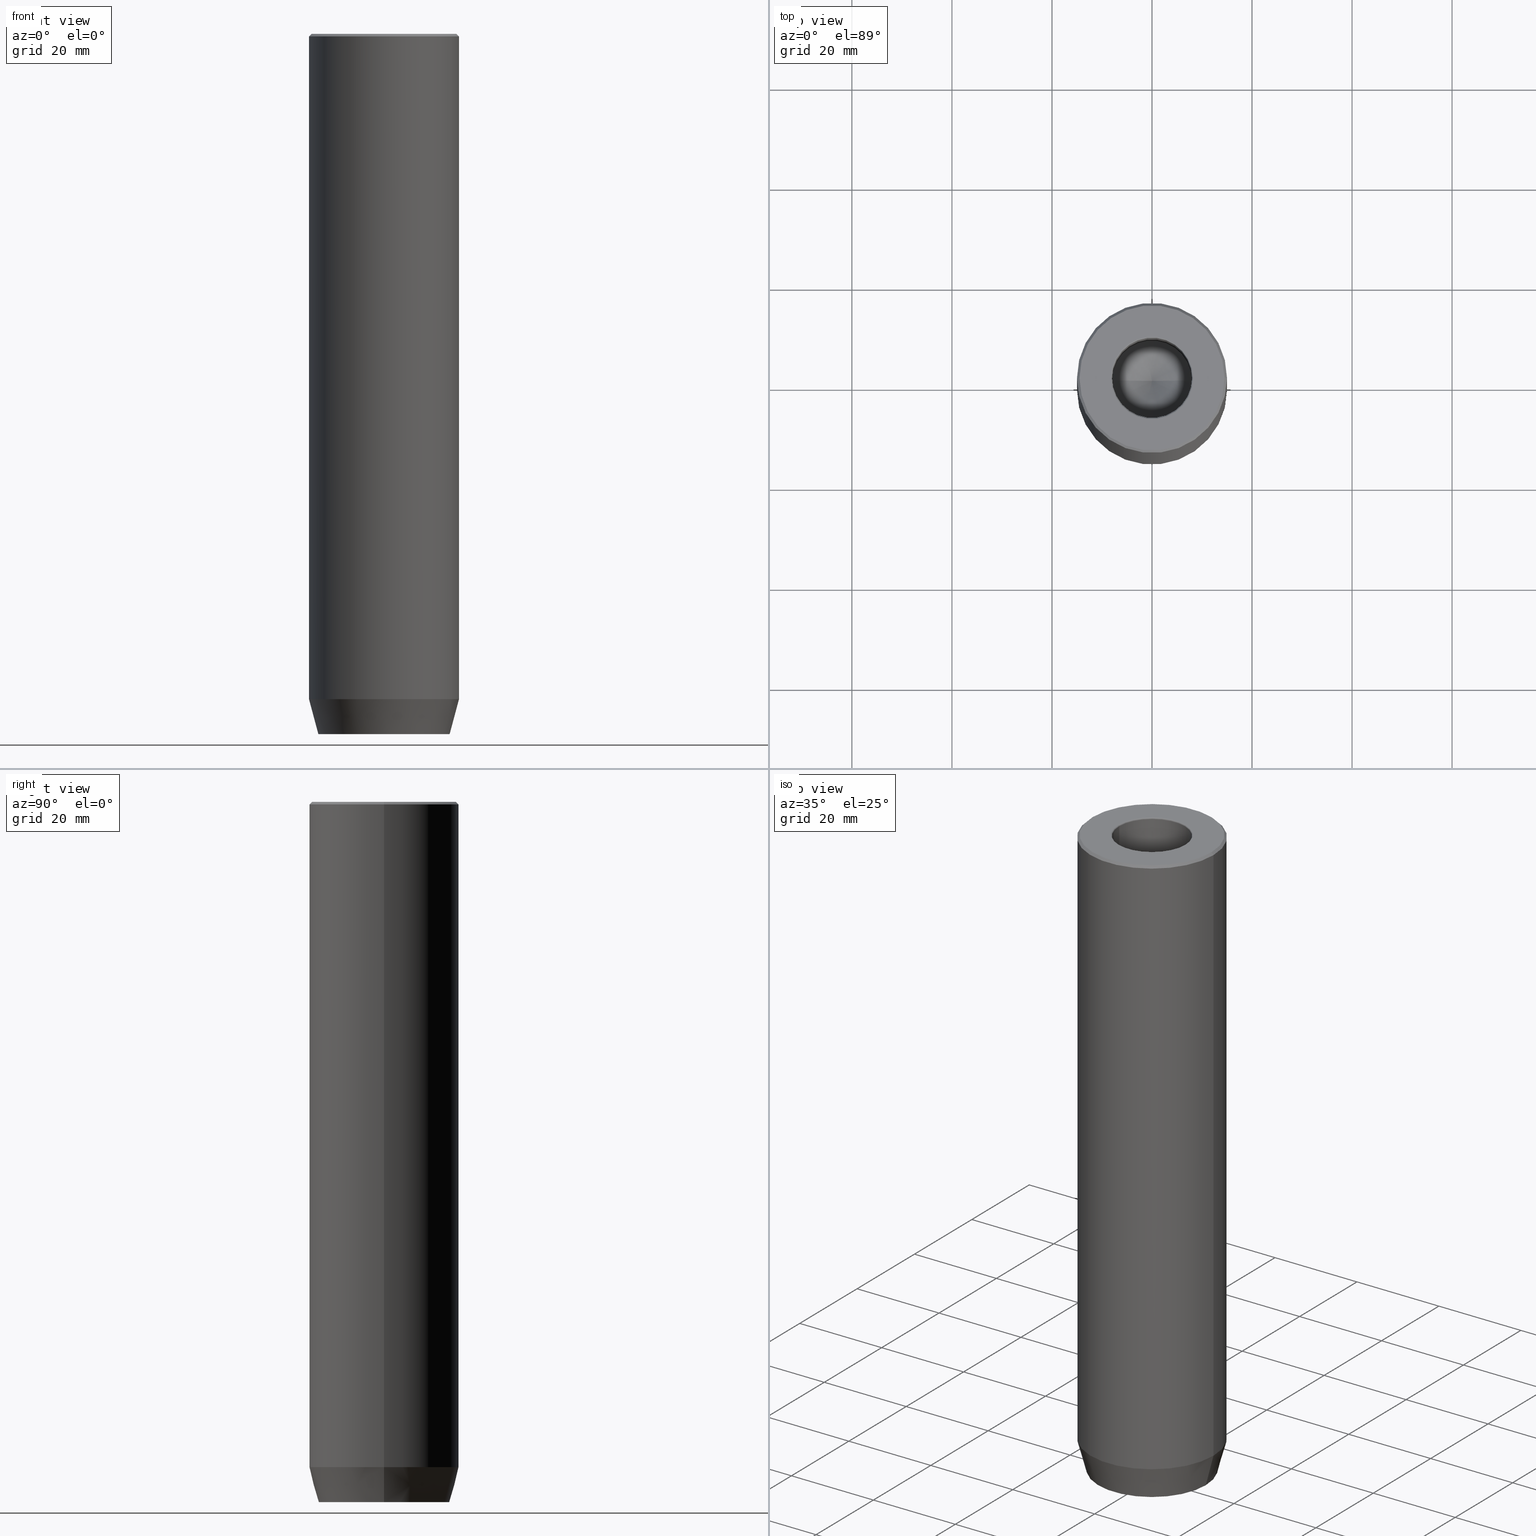
[diagram: canonical four-view strip — front | top / right | iso, engineering-drawing reading convention]
A machine part, canonical four-view strip (front | top / right | iso — engineering-drawing reading convention). The complete STEP part file that produces these views, byte-faithful:
ISO-10303-21;
HEADER;
FILE_DESCRIPTION (( 'STEP AP203' ),
    '1' );
FILE_NAME ('1ad8.STEP',
    '2024-01-02T17:25:17',
    ( '' ),
    ( '' ),
    'SwSTEP 2.0',
    'SolidWorks 2019',
    '' );
FILE_SCHEMA (( 'CONFIG_CONTROL_DESIGN' ));
ENDSEC;

DATA;
#1 = ORIENTED_EDGE ( 'NONE', *, *, #352, .T. ) ;
#2 = CARTESIAN_POINT ( 'NONE',  ( 4.000000000000000000, -2.309401076758503368, -134.2000000000000171 ) ) ;
#3 = VERTEX_POINT ( 'NONE', #603 ) ;
#4 = CARTESIAN_POINT ( 'NONE',  ( 4.000000000000000000, 2.309401076758504257, -134.2000000000000171 ) ) ;
#5 = EDGE_CURVE ( 'NONE', #40, #45, #266, .T. ) ;
#6 = EDGE_LOOP ( 'NONE', ( #193, #99, #291, #81 ) ) ;
#7 = AXIS2_PLACEMENT_3D ( 'NONE', #460, #509, #593 ) ;
#8 = DIRECTION ( 'NONE',  ( -0.8660254037844387076, 0.4999999999999997224, 0.000000000000000000 ) ) ;
#9 = FACE_OUTER_BOUND ( 'NONE', #446, .T. ) ;
#10 = CARTESIAN_POINT ( 'NONE',  ( -4.000000000000001776, -2.309401076758503368, -134.2000000000000171 ) ) ;
#11 = ORIENTED_EDGE ( 'NONE', *, *, #262, .F. ) ;
#12 = ADVANCED_FACE ( 'NONE', ( #50 ), #356, .T. ) ;
#13 = CARTESIAN_POINT ( 'NONE',  ( -1.999999999999999112, -3.464101615137755275, -140.0000000000000000 ) ) ;
#14 = LINE ( 'NONE', #150, #349 ) ;
#15 = AXIS2_PLACEMENT_3D ( 'NONE', #556, #250, #359 ) ;
#16 = AXIS2_PLACEMENT_3D ( 'NONE', #143, #579, #295 ) ;
#17 = CARTESIAN_POINT ( 'NONE',  ( 15.00000000000000000, 0.000000000000000000, -133.0000000000000000 ) ) ;
#18 = ADVANCED_BREP_SHAPE_REPRESENTATION ( '1ad8', ( #126, #463 ), #496 ) ;
#19 = CARTESIAN_POINT ( 'NONE',  ( -4.000000000000000888, 1.502314598737159623E-15, -134.2000000000000171 ) ) ;
#20 = PERSON_AND_ORGANIZATION ( #55, #277 ) ;
#21 = FACE_OUTER_BOUND ( 'NONE', #442, .T. ) ;
#22 = EDGE_LOOP ( 'NONE', ( #622, #439, #588 ) ) ;
#23 = DIRECTION ( 'NONE',  ( 1.000000000000000000, 0.000000000000000000, 0.000000000000000000 ) ) ;
#24 = ADVANCED_FACE ( 'NONE', ( #9 ), #60, .F. ) ;
#25 = PERSON_AND_ORGANIZATION_ROLE ( 'creator' ) ;
#26 = VECTOR ( 'NONE', #84, 1000.000000000000000 ) ;
#27 = CC_DESIGN_APPROVAL ( #43, ( #257 ) ) ;
#28 = DIRECTION ( 'NONE',  ( 0.8571673007021117785, 0.000000000000000000, 0.5150380749100550437 ) ) ;
#29 = AXIS2_PLACEMENT_3D ( 'NONE', #404, #251, #49 ) ;
#30 = EDGE_LOOP ( 'NONE', ( #379, #518, #611, #530 ) ) ;
#31 = LINE ( 'NONE', #329, #57 ) ;
#32 = ADVANCED_FACE ( 'NONE', ( #408 ), #454, .F. ) ;
#33 = PERSON_AND_ORGANIZATION ( #55, #277 ) ;
#34 = LINE ( 'NONE', #292, #341 ) ;
#35 = ORIENTED_EDGE ( 'NONE', *, *, #179, .F. ) ;
#36 = FACE_OUTER_BOUND ( 'NONE', #78, .T. ) ;
#37 = VECTOR ( 'NONE', #469, 1000.000000000000000 ) ;
#38 = ORIENTED_EDGE ( 'NONE', *, *, #370, .F. ) ;
#39 = CARTESIAN_POINT ( 'NONE',  ( 0.000000000000000000, 0.000000000000000000, -133.0000000000000000 ) ) ;
#40 = VERTEX_POINT ( 'NONE', #405 ) ;
#41 = CARTESIAN_POINT ( 'NONE',  ( 7.999999999999996447, 0.000000000000000000, -0.2999999999999999889 ) ) ;
#42 = ORIENTED_EDGE ( 'NONE', *, *, #494, .F. ) ;
#43 = APPROVAL ( #83, 'NEUR�EN�' ) ;
#44 = CARTESIAN_POINT ( 'NONE',  ( -14.50000000000001066, 0.000000000000000000, 0.000000000000000000 ) ) ;
#45 = VERTEX_POINT ( 'NONE', #113 ) ;
#46 = CONICAL_SURFACE ( 'NONE', #444, 15.00000000000000000, 0.2617993877991500740 ) ;
#47 = AXIS2_PLACEMENT_3D ( 'NONE', #355, #300, #602 ) ;
#48 = SECURITY_CLASSIFICATION_LEVEL ( 'unclassified' ) ;
#49 = DIRECTION ( 'NONE',  ( 0.8660254037844387076, -0.4999999999999997780, 0.000000000000000000 ) ) ;
#50 = FACE_OUTER_BOUND ( 'NONE', #419, .T. ) ;
#51 = EDGE_CURVE ( 'NONE', #174, #287, #259, .T. ) ;
#52 = CARTESIAN_POINT ( 'NONE',  ( 0.000000000000000000, 0.000000000000000000, -30.00000000000000000 ) ) ;
#53 = CARTESIAN_POINT ( 'NONE',  ( -15.00000000000000000, 1.836970198721029589E-15, -133.0000000000000000 ) ) ;
#54 = FACE_OUTER_BOUND ( 'NONE', #525, .T. ) ;
#55 = PERSON ( 'NEUR�EN�', 'NEUR�EN�', 'NEUR�EN�', ('NEUR�EN�'), ('NEUR�EN�'), ('NEUR�EN�') ) ;
#56 = CARTESIAN_POINT ( 'NONE',  ( -4.000000000000000000, 2.309401076758504257, -134.2000000000000171 ) ) ;
#57 = VECTOR ( 'NONE', #523, 1000.000000000000000 ) ;
#58 = AXIS2_PLACEMENT_3D ( 'NONE', #149, #206, #600 ) ;
#59 = LINE ( 'NONE', #258, #142 ) ;
#60 = PLANE ( 'NONE',  #131 ) ;
#61 = EDGE_CURVE ( 'NONE', #627, #40, #399, .T. ) ;
#62 = DIRECTION ( 'NONE',  ( -1.000000000000000000, 0.000000000000000000, -0.000000000000000000 ) ) ;
#63 = DIRECTION ( 'NONE',  ( -0.000000000000000000, -0.000000000000000000, -1.000000000000000000 ) ) ;
#64 = PRODUCT_RELATED_PRODUCT_CATEGORY ( 'detail', '', ( #248 ) ) ;
#65 = DIRECTION ( 'NONE',  ( 1.000000000000000000, 0.000000000000000000, 0.000000000000000000 ) ) ;
#66 = CARTESIAN_POINT ( 'NONE',  ( 0.000000000000000000, 0.000000000000000000, 0.000000000000000000 ) ) ;
#67 = CIRCLE ( 'NONE', #319, 15.00000000000000000 ) ;
#68 = VECTOR ( 'NONE', #199, 1000.000000000000000 ) ;
#69 = APPROVAL_ROLE ( '' ) ;
#70 = LINE ( 'NONE', #115, #89 ) ;
#71 = ORIENTED_EDGE ( 'NONE', *, *, #5, .T. ) ;
#72 = DATE_AND_TIME ( #471, #485 ) ;
#73 = EDGE_CURVE ( 'NONE', #627, #362, #503, .T. ) ;
#74 = DIRECTION ( 'NONE',  ( 0.8660254037844387076, -0.4999999999999999445, 0.000000000000000000 ) ) ;
#75 = ORIENTED_EDGE ( 'NONE', *, *, #358, .F. ) ;
#76 = CARTESIAN_POINT ( 'NONE',  ( 0.000000000000000000, 0.000000000000000000, -30.00000000000000000 ) ) ;
#77 = LINE ( 'NONE', #322, #443 ) ;
#78 = EDGE_LOOP ( 'NONE', ( #568, #606 ) ) ;
#79 = DIRECTION ( 'NONE',  ( -0.000000000000000000, -0.000000000000000000, 1.000000000000000000 ) ) ;
#80 = CARTESIAN_POINT ( 'NONE',  ( 0.000000000000000000, 0.000000000000000000, -133.0000000000000000 ) ) ;
#81 = ORIENTED_EDGE ( 'NONE', *, *, #599, .F. ) ;
#82 = EDGE_CURVE ( 'NONE', #3, #527, #109, .T. ) ;
#83 = APPROVAL_STATUS ( 'not_yet_approved' ) ;
#84 = DIRECTION ( 'NONE',  ( -0.000000000000000000, -0.000000000000000000, 1.000000000000000000 ) ) ;
#85 = ORIENTED_EDGE ( 'NONE', *, *, #51, .T. ) ;
#86 = CARTESIAN_POINT ( 'NONE',  ( -7.999999999999996447, 9.797174393178821713E-16, 0.000000000000000000 ) ) ;
#87 = EDGE_LOOP ( 'NONE', ( #351, #90, #224, #433 ) ) ;
#88 = DIRECTION ( 'NONE',  ( 1.000000000000000000, 0.000000000000000000, 0.000000000000000000 ) ) ;
#89 = VECTOR ( 'NONE', #562, 1000.000000000000227 ) ;
#90 = ORIENTED_EDGE ( 'NONE', *, *, #61, .T. ) ;
#91 = TOROIDAL_SURFACE ( 'NONE', #435, 8.299999999999997158, 0.2999999999999999889 ) ;
#92 = DIRECTION ( 'NONE',  ( 1.000000000000000000, 0.000000000000000000, 0.000000000000000000 ) ) ;
#93 = EDGE_CURVE ( 'NONE', #488, #415, #380, .T. ) ;
#94 = ORIENTED_EDGE ( 'NONE', *, *, #447, .T. ) ;
#95 = LINE ( 'NONE', #86, #26 ) ;
#96 = ORIENTED_EDGE ( 'NONE', *, *, #370, .T. ) ;
#97 = APPROVAL_ROLE ( '' ) ;
#98 = CARTESIAN_POINT ( 'NONE',  ( 0.000000000000000000, 0.000000000000000000, -0.2999999999999999889 ) ) ;
#99 = ORIENTED_EDGE ( 'NONE', *, *, #262, .T. ) ;
#100 = AXIS2_PLACEMENT_3D ( 'NONE', #631, #286, #388 ) ;
#101 = LOCAL_TIME ( 18, 25, 17.00000000000000000, #222 ) ;
#102 = EDGE_CURVE ( 'NONE', #396, #415, #220, .T. ) ;
#103 = DIRECTION ( 'NONE',  ( 0.000000000000000000, 0.000000000000000000, -1.000000000000000000 ) ) ;
#104 = VERTEX_POINT ( 'NONE', #56 ) ;
#105 = CARTESIAN_POINT ( 'NONE',  ( 0.000000000000000000, 0.000000000000000000, 0.000000000000000000 ) ) ;
#106 = DIRECTION ( 'NONE',  ( -0.000000000000000000, -0.000000000000000000, 1.000000000000000000 ) ) ;
#107 = DIRECTION ( 'NONE',  ( -0.000000000000000000, -0.000000000000000000, -1.000000000000000000 ) ) ;
#108 = EDGE_CURVE ( 'NONE', #521, #215, #14, .T. ) ;
#109 = LINE ( 'NONE', #200, #626 ) ;
#110 = AXIS2_PLACEMENT_3D ( 'NONE', #529, #290, #386 ) ;
#111 = FACE_OUTER_BOUND ( 'NONE', #232, .T. ) ;
#112 = EDGE_CURVE ( 'NONE', #45, #40, #67, .T. ) ;
#113 = CARTESIAN_POINT ( 'NONE',  ( -15.00000000000000000, 1.836970198721029589E-15, -0.4999999999999970024 ) ) ;
#114 = PERSON_AND_ORGANIZATION_ROLE ( 'design_owner' ) ;
#115 = CARTESIAN_POINT ( 'NONE',  ( 1.999999999999999556, -3.464101615137754386, -134.2000000000000171 ) ) ;
#116 = APPLICATION_PROTOCOL_DEFINITION ( 'international standard', 'config_control_design', 1994, #263 ) ;
#117 = DIRECTION ( 'NONE',  ( 1.000000000000000000, 0.000000000000000000, 0.000000000000000000 ) ) ;
#118 = ORIENTED_EDGE ( 'NONE', *, *, #179, .T. ) ;
#119 = EDGE_CURVE ( 'NONE', #577, #104, #428, .T. ) ;
#120 = APPROVAL_PERSON_ORGANIZATION ( #314, #638, #69 ) ;
#121 = DIRECTION ( 'NONE',  ( -0.000000000000000000, -0.000000000000000000, 1.000000000000000000 ) ) ;
#122 = CARTESIAN_POINT ( 'NONE',  ( 0.000000000000000000, 0.000000000000000000, -133.0000000000000000 ) ) ;
#123 = PERSON_AND_ORGANIZATION ( #55, #277 ) ;
#124 = CARTESIAN_POINT ( 'NONE',  ( -4.000000000000000888, 1.502314598737159623E-15, -134.2000000000000171 ) ) ;
#125 = VERTEX_POINT ( 'NONE', #425 ) ;
#126 = MANIFOLD_SOLID_BREP ( 'Odebrat vysunut�m1', #544 ) ;
#127 = PERSON_AND_ORGANIZATION ( #55, #277 ) ;
#128 = CARTESIAN_POINT ( 'NONE',  ( 7.999999999999994671, 0.000000000000000000, -30.00000000000000000 ) ) ;
#129 = EDGE_CURVE ( 'NONE', #246, #415, #621, .T. ) ;
#130 = ORIENTED_EDGE ( 'NONE', *, *, #340, .T. ) ;
#131 = AXIS2_PLACEMENT_3D ( 'NONE', #207, #547, #198 ) ;
#132 = CIRCLE ( 'NONE', #575, 7.999999999999994671 ) ;
#133 = LINE ( 'NONE', #573, #584 ) ;
#134 = PLANE ( 'NONE',  #16 ) ;
#135 = ORIENTED_EDGE ( 'NONE', *, *, #398, .T. ) ;
#136 = DIRECTION ( 'NONE',  ( 1.000000000000000000, 0.000000000000000000, 0.000000000000000000 ) ) ;
#137 = VERTEX_POINT ( 'NONE', #326 ) ;
#138 = ADVANCED_FACE ( 'NONE', ( #417 ), #339, .T. ) ;
#139 = FACE_OUTER_BOUND ( 'NONE', #22, .T. ) ;
#140 = CIRCLE ( 'NONE', #221, 15.00000000000000000 ) ;
#141 = EDGE_LOOP ( 'NONE', ( #507, #280, #218, #301 ) ) ;
#142 = VECTOR ( 'NONE', #456, 999.9999999999998863 ) ;
#143 = CARTESIAN_POINT ( 'NONE',  ( 2.000000000000000000, 3.464101615137755275, -134.2000000000000171 ) ) ;
#144 = ORIENTED_EDGE ( 'NONE', *, *, #557, .T. ) ;
#145 = DATE_AND_TIME ( #334, #545 ) ;
#146 = FACE_OUTER_BOUND ( 'NONE', #271, .T. ) ;
#147 = EDGE_CURVE ( 'NONE', #215, #3, #377, .T. ) ;
#148 = ORIENTED_EDGE ( 'NONE', *, *, #391, .F. ) ;
#149 = CARTESIAN_POINT ( 'NONE',  ( 0.000000000000000000, 0.000000000000000000, 0.000000000000000000 ) ) ;
#150 = CARTESIAN_POINT ( 'NONE',  ( 2.168404344971008868E-16, 4.618802153517005848, -134.2000000000000171 ) ) ;
#151 = AXIS2_PLACEMENT_3D ( 'NONE', #607, #619, #270 ) ;
#152 = CIRCLE ( 'NONE', #171, 0.2999999999999999334 ) ;
#153 = PLANE ( 'NONE',  #29 ) ;
#154 = VERTEX_POINT ( 'NONE', #567 ) ;
#155 = DIRECTION ( 'NONE',  ( -0.000000000000000000, -0.000000000000000000, 1.000000000000000000 ) ) ;
#156 = CARTESIAN_POINT ( 'NONE',  ( 0.000000000000000000, 0.000000000000000000, 0.000000000000000000 ) ) ;
#157 = CC_DESIGN_DATE_AND_TIME_ASSIGNMENT ( #247, #540, ( #257 ) ) ;
#158 = CARTESIAN_POINT ( 'NONE',  ( 0.000000000000000000, 0.000000000000000000, -0.2999999999999999889 ) ) ;
#159 = CARTESIAN_POINT ( 'NONE',  ( 0.000000000000000000, 0.000000000000000000, -0.2999999999999999889 ) ) ;
#160 = AXIS2_PLACEMENT_3D ( 'NONE', #177, #375, #571 ) ;
#161 = VECTOR ( 'NONE', #393, 1000.000000000000000 ) ;
#162 = DIRECTION ( 'NONE',  ( -0.000000000000000000, -0.000000000000000000, 1.000000000000000000 ) ) ;
#163 = DIRECTION ( 'NONE',  ( 1.000000000000000000, 0.000000000000000000, 0.000000000000000000 ) ) ;
#164 = LINE ( 'NONE', #364, #561 ) ;
#165 = EDGE_CURVE ( 'NONE', #421, #384, #70, .T. ) ;
#166 = ORIENTED_EDGE ( 'NONE', *, *, #219, .T. ) ;
#167 = CARTESIAN_POINT ( 'NONE',  ( 14.50000000000001066, 1.806354028742346591E-15, 0.000000000000000000 ) ) ;
#168 = CARTESIAN_POINT ( 'NONE',  ( 0.000000000000000000, 0.000000000000000000, 0.000000000000000000 ) ) ;
#169 = ORIENTED_EDGE ( 'NONE', *, *, #617, .T. ) ;
#170 = VECTOR ( 'NONE', #74, 999.9999999999998863 ) ;
#171 = AXIS2_PLACEMENT_3D ( 'NONE', #361, #272, #278 ) ;
#172 = MECHANICAL_CONTEXT ( 'NONE', #263, 'mechanical' ) ;
#173 = LINE ( 'NONE', #414, #410 ) ;
#174 = VERTEX_POINT ( 'NONE', #315 ) ;
#175 = ADVANCED_FACE ( 'NONE', ( #21 ), #511, .T. ) ;
#176 = DIRECTION ( 'NONE',  ( 1.000000000000000000, 0.000000000000000000, 0.000000000000000000 ) ) ;
#177 = CARTESIAN_POINT ( 'NONE',  ( 0.000000000000000000, 0.000000000000000000, -140.0000000000000000 ) ) ;
#178 = ORIENTED_EDGE ( 'NONE', *, *, #520, .T. ) ;
#179 = EDGE_CURVE ( 'NONE', #539, #3, #77, .T. ) ;
#180 = CARTESIAN_POINT ( 'NONE',  ( 7.999999999999996447, 0.000000000000000000, 0.000000000000000000 ) ) ;
#181 = ORIENTED_EDGE ( 'NONE', *, *, #284, .F. ) ;
#182 = PRODUCT_DEFINITION_FORMATION_WITH_SPECIFIED_SOURCE ( 'LIBOVOLN�', '', #248, .NOT_KNOWN. ) ;
#183 = CARTESIAN_POINT ( 'NONE',  ( 0.000000000000000000, 0.000000000000000000, 0.000000000000000000 ) ) ;
#184 = ORIENTED_EDGE ( 'NONE', *, *, #108, .T. ) ;
#185 = APPROVAL_ROLE ( '' ) ;
#186 = FACE_OUTER_BOUND ( 'NONE', #592, .T. ) ;
#187 = EDGE_LOOP ( 'NONE', ( #252, #492, #376, #343 ) ) ;
#188 = ADVANCED_FACE ( 'NONE', ( #223 ), #534, .T. ) ;
#189 = CARTESIAN_POINT ( 'NONE',  ( 0.000000000000000000, 0.000000000000000000, -30.00000000000000000 ) ) ;
#190 = ORIENTED_EDGE ( 'NONE', *, *, #82, .T. ) ;
#191 = CONICAL_SURFACE ( 'NONE', #583, 7.999999999999994671, 1.029744258676653423 ) ;
#192 = CARTESIAN_POINT ( 'NONE',  ( -4.000000000000000888, 1.502314598737159623E-15, -140.0000000000000000 ) ) ;
#193 = ORIENTED_EDGE ( 'NONE', *, *, #284, .T. ) ;
#194 = EDGE_CURVE ( 'NONE', #362, #627, #604, .T. ) ;
#195 = DIRECTION ( 'NONE',  ( -0.000000000000000000, -0.000000000000000000, -1.000000000000000000 ) ) ;
#196 = ORIENTED_EDGE ( 'NONE', *, *, #599, .T. ) ;
#197 = FACE_OUTER_BOUND ( 'NONE', #6, .T. ) ;
#198 = DIRECTION ( 'NONE',  ( -0.8660254037844385966, -0.4999999999999998890, 0.000000000000000000 ) ) ;
#199 = DIRECTION ( 'NONE',  ( -0.000000000000000000, -0.000000000000000000, -1.000000000000000000 ) ) ;
#200 = CARTESIAN_POINT ( 'NONE',  ( 4.000000000000000000, 0.000000000000000000, -140.0000000000000000 ) ) ;
#201 = VECTOR ( 'NONE', #28, 1000.000000000000000 ) ;
#202 = CIRCLE ( 'NONE', #563, 15.00000000000000000 ) ;
#203 = DIRECTION ( 'NONE',  ( -0.000000000000000000, -0.000000000000000000, 1.000000000000000000 ) ) ;
#204 = CARTESIAN_POINT ( 'NONE',  ( 0.000000000000000000, 0.000000000000000000, -0.4999999999999970024 ) ) ;
#205 = ADVANCED_FACE ( 'NONE', ( #217 ), #495, .T. ) ;
#206 = DIRECTION ( 'NONE',  ( 0.000000000000000000, 0.000000000000000000, -1.000000000000000000 ) ) ;
#207 = CARTESIAN_POINT ( 'NONE',  ( -2.000000000000000000, 3.464101615137755275, -134.2000000000000171 ) ) ;
#208 = DIRECTION ( 'NONE',  ( 0.000000000000000000, 0.000000000000000000, -1.000000000000000000 ) ) ;
#209 = AXIS2_PLACEMENT_3D ( 'NONE', #19, #466, #462 ) ;
#210 = AXIS2_PLACEMENT_3D ( 'NONE', #522, #79, #176 ) ;
#211 = ADVANCED_FACE ( 'NONE', ( #212 ), #265, .F. ) ;
#212 = FACE_OUTER_BOUND ( 'NONE', #394, .T. ) ;
#213 = EDGE_LOOP ( 'NONE', ( #178, #1 ) ) ;
#214 = DIRECTION ( 'NONE',  ( -0.7071067811865414665, 0.000000000000000000, -0.7071067811865536790 ) ) ;
#215 = VERTEX_POINT ( 'NONE', #420 ) ;
#216 = CARTESIAN_POINT ( 'NONE',  ( -4.000000000000001776, -2.309401076758503368, -134.2000000000000171 ) ) ;
#217 = FACE_OUTER_BOUND ( 'NONE', #87, .T. ) ;
#218 = ORIENTED_EDGE ( 'NONE', *, *, #391, .T. ) ;
#219 = EDGE_CURVE ( 'NONE', #384, #577, #173, .T. ) ;
#220 = CIRCLE ( 'NONE', #7, 0.2999999999999999889 ) ;
#221 = AXIS2_PLACEMENT_3D ( 'NONE', #80, #487, #235 ) ;
#222 = COORDINATED_UNIVERSAL_TIME_OFFSET ( 1, 0, .AHEAD. ) ;
#223 = FACE_OUTER_BOUND ( 'NONE', #187, .T. ) ;
#224 = ORIENTED_EDGE ( 'NONE', *, *, #112, .F. ) ;
#225 = APPROVAL ( #233, 'NEUR�EN�' ) ;
#226 = PERSON_AND_ORGANIZATION_ROLE ( 'creator' ) ;
#227 = DIRECTION ( 'NONE',  ( -0.000000000000000000, -0.000000000000000000, 1.000000000000000000 ) ) ;
#228 = ORIENTED_EDGE ( 'NONE', *, *, #506, .F. ) ;
#229 = COORDINATED_UNIVERSAL_TIME_OFFSET ( 1, 0, .AHEAD. ) ;
#230 = UNCERTAINTY_MEASURE_WITH_UNIT (LENGTH_MEASURE( 1.000000000000000082E-05 ), #374, 'distance_accuracy_value', 'NONE');
#231 = DIRECTION ( 'NONE',  ( 0.8660254037844387076, 0.4999999999999999445, 0.000000000000000000 ) ) ;
#232 = EDGE_LOOP ( 'NONE', ( #598, #318, #296, #536 ) ) ;
#233 = APPROVAL_STATUS ( 'not_yet_approved' ) ;
#234 = AXIS2_PLACEMENT_3D ( 'NONE', #517, #476, #117 ) ;
#235 = DIRECTION ( 'NONE',  ( 1.000000000000000000, 0.000000000000000000, 0.000000000000000000 ) ) ;
#236 = EDGE_CURVE ( 'NONE', #467, #246, #372, .T. ) ;
#237 = ORIENTED_EDGE ( 'NONE', *, *, #570, .F. ) ;
#238 = CARTESIAN_POINT ( 'NONE',  ( -15.00000000000000000, 1.836970198721029589E-15, -133.0000000000000000 ) ) ;
#239 = ORIENTED_EDGE ( 'NONE', *, *, #313, .F. ) ;
#240 = CARTESIAN_POINT ( 'NONE',  ( 8.299999999999997158, 0.000000000000000000, 0.000000000000000000 ) ) ;
#241 = ORIENTED_EDGE ( 'NONE', *, *, #333, .T. ) ;
#242 = EDGE_CURVE ( 'NONE', #174, #608, #422, .T. ) ;
#243 = VECTOR ( 'NONE', #532, 1000.000000000000227 ) ;
#244 = PLANE ( 'NONE',  #412 ) ;
#245 = VECTOR ( 'NONE', #107, 1000.000000000000000 ) ;
#246 = VERTEX_POINT ( 'NONE', #128 ) ;
#247 = DATE_AND_TIME ( #346, #615 ) ;
#248 = PRODUCT ( '1ad8', '1ad8', '', ( #172 ) ) ;
#249 = LINE ( 'NONE', #499, #68 ) ;
#250 = DIRECTION ( 'NONE',  ( 0.000000000000000000, 0.000000000000000000, -1.000000000000000000 ) ) ;
#251 = DIRECTION ( 'NONE',  ( -0.4999999999999998335, -0.8660254037844388186, 0.000000000000000000 ) ) ;
#252 = ORIENTED_EDGE ( 'NONE', *, *, #586, .F. ) ;
#253 = CARTESIAN_POINT ( 'NONE',  ( -8.299999999999997158, 1.016456843292302637E-15, 0.000000000000000000 ) ) ;
#254 = EDGE_CURVE ( 'NONE', #362, #45, #164, .T. ) ;
#255 = ORIENTED_EDGE ( 'NONE', *, *, #119, .T. ) ;
#256 = VECTOR ( 'NONE', #312, 1000.000000000000000 ) ;
#257 = SECURITY_CLASSIFICATION ( '', '', #48 ) ;
#258 = CARTESIAN_POINT ( 'NONE',  ( -2.000000000000000000, 3.464101615137755275, -140.0000000000000000 ) ) ;
#259 = LINE ( 'NONE', #53, #636 ) ;
#260 = FACE_BOUND ( 'NONE', #542, .T. ) ;
#261 = CARTESIAN_POINT ( 'NONE',  ( 0.000000000000000000, 0.000000000000000000, -0.4999999999999970024 ) ) ;
#262 = EDGE_CURVE ( 'NONE', #287, #45, #31, .T. ) ;
#263 = APPLICATION_CONTEXT ( 'configuration controlled 3d designs of mechanical parts and assemblies' ) ;
#264 = CARTESIAN_POINT ( 'NONE',  ( 15.00000000000000000, 0.000000000000000000, 0.000000000000000000 ) ) ;
#265 = PLANE ( 'NONE',  #209 ) ;
#266 = CIRCLE ( 'NONE', #595, 15.00000000000000000 ) ;
#267 = VECTOR ( 'NONE', #8, 1000.000000000000114 ) ;
#268 = DIRECTION ( 'NONE',  ( -1.000000000000000000, 0.000000000000000000, 0.000000000000000000 ) ) ;
#269 = ORIENTED_EDGE ( 'NONE', *, *, #398, .F. ) ;
#270 = DIRECTION ( 'NONE',  ( 1.000000000000000000, 0.000000000000000000, 0.000000000000000000 ) ) ;
#271 = EDGE_LOOP ( 'NONE', ( #345, #473, #429 ) ) ;
#272 = DIRECTION ( 'NONE',  ( 1.224646799147353207E-16, 1.000000000000000000, 0.000000000000000000 ) ) ;
#273 = DIRECTION ( 'NONE',  ( -0.8660254037844387076, 0.4999999999999997224, 0.000000000000000000 ) ) ;
#274 = CC_DESIGN_PERSON_AND_ORGANIZATION_ASSIGNMENT ( #385, #589, ( #257 ) ) ;
#275 = ORIENTED_EDGE ( 'NONE', *, *, #617, .F. ) ;
#276 = VECTOR ( 'NONE', #231, 999.9999999999998863 ) ;
#277 = ORGANIZATION ( 'NEUR�EN�', 'NEUR�EN�', '' ) ;
#278 = DIRECTION ( 'NONE',  ( -1.000000000000000000, 1.224646799147353207E-16, 0.000000000000000000 ) ) ;
#279 = CARTESIAN_POINT ( 'NONE',  ( 7.999999999999994671, 0.000000000000000000, -30.00000000000000000 ) ) ;
#280 = ORIENTED_EDGE ( 'NONE', *, *, #242, .T. ) ;
#281 = APPROVAL_DATE_TIME ( #145, #225 ) ;
#282 = FACE_OUTER_BOUND ( 'NONE', #336, .T. ) ;
#283 = ORIENTED_EDGE ( 'NONE', *, *, #333, .F. ) ;
#284 = EDGE_CURVE ( 'NONE', #580, #287, #140, .T. ) ;
#285 = PERSON_AND_ORGANIZATION ( #55, #277 ) ;
#286 = DIRECTION ( 'NONE',  ( -0.000000000000000000, -0.000000000000000000, 1.000000000000000000 ) ) ;
#287 = VERTEX_POINT ( 'NONE', #238 ) ;
#288 = AXIS2_PLACEMENT_3D ( 'NONE', #156, #106, #552 ) ;
#289 = CC_DESIGN_APPROVAL ( #638, ( #591 ) ) ;
#290 = DIRECTION ( 'NONE',  ( 0.000000000000000000, 0.000000000000000000, -1.000000000000000000 ) ) ;
#291 = ORIENTED_EDGE ( 'NONE', *, *, #112, .T. ) ;
#292 = CARTESIAN_POINT ( 'NONE',  ( 2.000000000000000000, 3.464101615137755275, -134.2000000000000171 ) ) ;
#293 = ADVANCED_FACE ( 'NONE', ( #139 ), #191, .F. ) ;
#294 = EDGE_LOOP ( 'NONE', ( #239, #130, #490, #483 ) ) ;
#295 = DIRECTION ( 'NONE',  ( -0.8660254037844385966, 0.4999999999999998890, 0.000000000000000000 ) ) ;
#296 = ORIENTED_EDGE ( 'NONE', *, *, #447, .F. ) ;
#297 = PERSON_AND_ORGANIZATION ( #55, #277 ) ;
#298 = APPLICATION_CONTEXT ( 'configuration controlled 3d designs of mechanical parts and assemblies' ) ;
#299 = CIRCLE ( 'NONE', #100, 7.999999999999994671 ) ;
#300 = DIRECTION ( 'NONE',  ( -0.000000000000000000, -0.000000000000000000, 1.000000000000000000 ) ) ;
#301 = ORIENTED_EDGE ( 'NONE', *, *, #578, .F. ) ;
#302 = DIRECTION ( 'NONE',  ( 1.000000000000000000, 0.000000000000000000, 0.000000000000000000 ) ) ;
#303 = CARTESIAN_POINT ( 'NONE',  ( 4.000000000000000000, 0.000000000000000000, -134.2000000000000171 ) ) ;
#304 = EDGE_CURVE ( 'NONE', #539, #421, #133, .T. ) ;
#305 = DIRECTION ( 'NONE',  ( 1.000000000000000000, 0.000000000000000000, 0.000000000000000000 ) ) ;
#306 = DIRECTION ( 'NONE',  ( -0.000000000000000000, -0.000000000000000000, 1.000000000000000000 ) ) ;
#307 = DIRECTION ( 'NONE',  ( 0.000000000000000000, 0.000000000000000000, -1.000000000000000000 ) ) ;
#308 = VECTOR ( 'NONE', #342, 1000.000000000000000 ) ;
#309 = DIRECTION ( 'NONE',  ( 0.000000000000000000, -1.000000000000000000, 0.000000000000000000 ) ) ;
#310 = LOCAL_TIME ( 18, 25, 17.00000000000000000, #229 ) ;
#311 = FACE_OUTER_BOUND ( 'NONE', #389, .T. ) ;
#312 = DIRECTION ( 'NONE',  ( 0.7071067811865414665, 8.659560562354857670E-17, -0.7071067811865536790 ) ) ;
#313 = EDGE_CURVE ( 'NONE', #125, #246, #299, .T. ) ;
#314 = PERSON_AND_ORGANIZATION ( #55, #277 ) ;
#315 = CARTESIAN_POINT ( 'NONE',  ( -13.12435565298213369, 1.722120106425316888E-15, -140.0000000000000000 ) ) ;
#316 = APPROVAL_STATUS ( 'not_yet_approved' ) ;
#317 = DIRECTION ( 'NONE',  ( -0.000000000000000000, -0.000000000000000000, -1.000000000000000000 ) ) ;
#318 = ORIENTED_EDGE ( 'NONE', *, *, #586, .T. ) ;
#319 = AXIS2_PLACEMENT_3D ( 'NONE', #261, #208, #23 ) ;
#320 = VECTOR ( 'NONE', #409, 1000.000000000000000 ) ;
#321 = PRODUCT_DEFINITION_SHAPE ( 'NONE', 'NONE',  #591 ) ;
#322 = CARTESIAN_POINT ( 'NONE',  ( 4.000000000000000000, 2.309401076758504257, -134.2000000000000171 ) ) ;
#323 = ORIENTED_EDGE ( 'NONE', *, *, #147, .F. ) ;
#324 = LINE ( 'NONE', #216, #320 ) ;
#325 = EDGE_CURVE ( 'NONE', #467, #125, #383, .T. ) ;
#326 = CARTESIAN_POINT ( 'NONE',  ( -4.000000000000001776, -2.309401076758503368, -140.0000000000000000 ) ) ;
#327 = ORIENTED_EDGE ( 'NONE', *, *, #108, .F. ) ;
#328 = LINE ( 'NONE', #264, #505 ) ;
#329 = CARTESIAN_POINT ( 'NONE',  ( -15.00000000000000000, 1.836970198721029589E-15, 0.000000000000000000 ) ) ;
#330 = VECTOR ( 'NONE', #344, 1000.000000000000000 ) ;
#331 = AXIS2_PLACEMENT_3D ( 'NONE', #52, #203, #302 ) ;
#332 = LINE ( 'NONE', #438, #330 ) ;
#333 = EDGE_CURVE ( 'NONE', #104, #521, #526, .T. ) ;
#334 = CALENDAR_DATE ( 2024, 2, 1 ) ;
#335 = DIRECTION ( 'NONE',  ( -0.000000000000000000, -0.000000000000000000, 1.000000000000000000 ) ) ;
#336 = EDGE_LOOP ( 'NONE', ( #533, #85, #181, #148 ) ) ;
#337 = FACE_OUTER_BOUND ( 'NONE', #481, .T. ) ;
#338 = EDGE_LOOP ( 'NONE', ( #564, #275, #582, #144 ) ) ;
#339 = CONICAL_SURFACE ( 'NONE', #434, 15.00000000000000000, 0.2617993877991500740 ) ;
#340 = EDGE_CURVE ( 'NONE', #125, #488, #95, .T. ) ;
#341 = VECTOR ( 'NONE', #587, 999.9999999999998863 ) ;
#342 = DIRECTION ( 'NONE',  ( -0.8571673007021117785, 1.049727191138617956E-16, 0.5150380749100550437 ) ) ;
#343 = ORIENTED_EDGE ( 'NONE', *, *, #93, .F. ) ;
#344 = DIRECTION ( 'NONE',  ( 0.2588190451025213501, 0.000000000000000000, 0.9659258262890680902 ) ) ;
#345 = ORIENTED_EDGE ( 'NONE', *, *, #236, .F. ) ;
#346 = CALENDAR_DATE ( 2024, 2, 1 ) ;
#347 = CARTESIAN_POINT ( 'NONE',  ( -8.296478875781655917E-15, 0.000000000000000000, -34.80688495222048573 ) ) ;
#348 = ORIENTED_EDGE ( 'NONE', *, *, #570, .T. ) ;
#349 = VECTOR ( 'NONE', #63, 1000.000000000000000 ) ;
#350 = CYLINDRICAL_SURFACE ( 'NONE', #47, 7.999999999999996447 ) ;
#351 = ORIENTED_EDGE ( 'NONE', *, *, #73, .F. ) ;
#352 = EDGE_CURVE ( 'NONE', #457, #396, #390, .T. ) ;
#353 = CARTESIAN_POINT ( 'NONE',  ( 0.000000000000000000, 0.000000000000000000, 0.000000000000000000 ) ) ;
#354 = DIRECTION ( 'NONE',  ( 1.000000000000000000, 0.000000000000000000, -0.000000000000000000 ) ) ;
#355 = CARTESIAN_POINT ( 'NONE',  ( 0.000000000000000000, 0.000000000000000000, 0.000000000000000000 ) ) ;
#356 = PLANE ( 'NONE',  #15 ) ;
#357 = FACE_OUTER_BOUND ( 'NONE', #338, .T. ) ;
#358 = EDGE_CURVE ( 'NONE', #527, #477, #535, .T. ) ;
#359 = DIRECTION ( 'NONE',  ( -1.000000000000000000, 0.000000000000000000, -0.000000000000000000 ) ) ;
#360 = AXIS2_PLACEMENT_3D ( 'NONE', #546, #103, #62 ) ;
#361 = CARTESIAN_POINT ( 'NONE',  ( -8.299999999999997158, 1.016456843292302637E-15, -0.2999999999999999889 ) ) ;
#362 = VERTEX_POINT ( 'NONE', #44 ) ;
#363 = FACE_OUTER_BOUND ( 'NONE', #294, .T. ) ;
#364 = CARTESIAN_POINT ( 'NONE',  ( -14.50000000000001066, 0.000000000000000000, 0.000000000000000000 ) ) ;
#365 = ORIENTED_EDGE ( 'NONE', *, *, #165, .T. ) ;
#366 =( NAMED_UNIT ( * ) PLANE_ANGLE_UNIT ( ) SI_UNIT ( $, .RADIAN. ) );
#367 = DIRECTION ( 'NONE',  ( 1.000000000000000000, 0.000000000000000000, 0.000000000000000000 ) ) ;
#368 = ORIENTED_EDGE ( 'NONE', *, *, #358, .T. ) ;
#369 = APPROVAL_PERSON_ORGANIZATION ( #127, #225, #185 ) ;
#370 = EDGE_CURVE ( 'NONE', #104, #154, #436, .T. ) ;
#371 = CARTESIAN_POINT ( 'NONE',  ( 0.000000000000000000, 0.000000000000000000, 0.000000000000000000 ) ) ;
#372 = LINE ( 'NONE', #279, #201 ) ;
#373 = EDGE_LOOP ( 'NONE', ( #190, #635, #555, #118 ) ) ;
#374 =( LENGTH_UNIT ( ) NAMED_UNIT ( * ) SI_UNIT ( .MILLI., .METRE. ) );
#375 = DIRECTION ( 'NONE',  ( -0.000000000000000000, -0.000000000000000000, 1.000000000000000000 ) ) ;
#376 = ORIENTED_EDGE ( 'NONE', *, *, #102, .T. ) ;
#377 = LINE ( 'NONE', #558, #170 ) ;
#378 = ADVANCED_FACE ( 'NONE', ( #282 ), #46, .T. ) ;
#379 = ORIENTED_EDGE ( 'NONE', *, *, #61, .F. ) ;
#380 = CIRCLE ( 'NONE', #574, 7.999999999999996447 ) ;
#381 = CONICAL_SURFACE ( 'NONE', #596, 14.50000000000001066, 0.7853981633974396193 ) ;
#382 = SHAPE_DEFINITION_REPRESENTATION ( #321, #18 ) ;
#383 = LINE ( 'NONE', #624, #308 ) ;
#384 = VERTEX_POINT ( 'NONE', #480 ) ;
#385 = PERSON_AND_ORGANIZATION ( #55, #277 ) ;
#386 = DIRECTION ( 'NONE',  ( 1.000000000000000000, 0.000000000000000000, 0.000000000000000000 ) ) ;
#387 = ORIENTED_EDGE ( 'NONE', *, *, #578, .T. ) ;
#388 = DIRECTION ( 'NONE',  ( 1.000000000000000000, 0.000000000000000000, 0.000000000000000000 ) ) ;
#389 = EDGE_LOOP ( 'NONE', ( #616, #498, #559, #94 ) ) ;
#390 = CIRCLE ( 'NONE', #110, 8.299999999999997158 ) ;
#391 = EDGE_CURVE ( 'NONE', #608, #580, #332, .T. ) ;
#392 = CC_DESIGN_SECURITY_CLASSIFICATION ( #257, ( #182 ) ) ;
#393 = DIRECTION ( 'NONE',  ( 3.755786496842898071E-16, 1.000000000000000000, 0.000000000000000000 ) ) ;
#394 = EDGE_LOOP ( 'NONE', ( #632, #38, #630, #169 ) ) ;
#395 = PLANE ( 'NONE',  #360 ) ;
#396 = VERTEX_POINT ( 'NONE', #240 ) ;
#397 = DIRECTION ( 'NONE',  ( -0.000000000000000000, -0.000000000000000000, 1.000000000000000000 ) ) ;
#398 = EDGE_CURVE ( 'NONE', #521, #539, #34, .T. ) ;
#399 = LINE ( 'NONE', #601, #256 ) ;
#400 = AXIS2_PLACEMENT_3D ( 'NONE', #168, #227, #367 ) ;
#401 = LINE ( 'NONE', #2, #245 ) ;
#402 = AXIS2_PLACEMENT_3D ( 'NONE', #590, #397, #452 ) ;
#403 = ORIENTED_EDGE ( 'NONE', *, *, #82, .F. ) ;
#404 = CARTESIAN_POINT ( 'NONE',  ( -1.999999999999999112, -3.464101615137755275, -134.2000000000000171 ) ) ;
#405 = CARTESIAN_POINT ( 'NONE',  ( 15.00000000000000000, 0.000000000000000000, -0.4999999999999970024 ) ) ;
#406 = ADVANCED_FACE ( 'NONE', ( #432, #36 ), #629, .T. ) ;
#407 = CYLINDRICAL_SURFACE ( 'NONE', #474, 15.00000000000000000 ) ;
#408 = FACE_OUTER_BOUND ( 'NONE', #373, .T. ) ;
#409 = DIRECTION ( 'NONE',  ( -0.000000000000000000, -0.000000000000000000, -1.000000000000000000 ) ) ;
#410 = VECTOR ( 'NONE', #273, 1000.000000000000114 ) ;
#411 = ORIENTED_EDGE ( 'NONE', *, *, #475, .T. ) ;
#412 = AXIS2_PLACEMENT_3D ( 'NONE', #537, #491, #497 ) ;
#413 = CARTESIAN_POINT ( 'NONE',  ( 0.000000000000000000, 0.000000000000000000, -133.0000000000000000 ) ) ;
#414 = CARTESIAN_POINT ( 'NONE',  ( -1.999999999999999112, -3.464101615137755275, -134.2000000000000171 ) ) ;
#415 = VERTEX_POINT ( 'NONE', #41 ) ;
#416 = COORDINATED_UNIVERSAL_TIME_OFFSET ( 1, 0, .AHEAD. ) ;
#417 = FACE_OUTER_BOUND ( 'NONE', #141, .T. ) ;
#418 = EDGE_CURVE ( 'NONE', #137, #154, #634, .T. ) ;
#419 = EDGE_LOOP ( 'NONE', ( #241, #135, #426, #365, #166, #255 ) ) ;
#420 = CARTESIAN_POINT ( 'NONE',  ( 4.336808689942017736E-16, 4.618802153517006737, -140.0000000000000000 ) ) ;
#421 = VERTEX_POINT ( 'NONE', #576 ) ;
#422 = CIRCLE ( 'NONE', #160, 13.12435565298213369 ) ;
#423 = AXIS2_PLACEMENT_3D ( 'NONE', #183, #489, #136 ) ;
#424 = CALENDAR_DATE ( 2024, 2, 1 ) ;
#425 = CARTESIAN_POINT ( 'NONE',  ( -7.999999999999994671, 9.797174393178819741E-16, -30.00000000000000000 ) ) ;
#426 = ORIENTED_EDGE ( 'NONE', *, *, #304, .T. ) ;
#427 = ADVANCED_FACE ( 'NONE', ( #186 ), #134, .F. ) ;
#428 = LINE ( 'NONE', #124, #37 ) ;
#429 = ORIENTED_EDGE ( 'NONE', *, *, #313, .T. ) ;
#430 = COORDINATED_UNIVERSAL_TIME_OFFSET ( 1, 0, .AHEAD. ) ;
#431 = CC_DESIGN_PERSON_AND_ORGANIZATION_ASSIGNMENT ( #20, #114, ( #248 ) ) ;
#432 = FACE_BOUND ( 'NONE', #213, .T. ) ;
#433 = ORIENTED_EDGE ( 'NONE', *, *, #254, .F. ) ;
#434 = AXIS2_PLACEMENT_3D ( 'NONE', #122, #519, #610 ) ;
#435 = AXIS2_PLACEMENT_3D ( 'NONE', #98, #155, #450 ) ;
#436 = LINE ( 'NONE', #482, #472 ) ;
#437 = ORIENTED_EDGE ( 'NONE', *, *, #557, .F. ) ;
#438 = CARTESIAN_POINT ( 'NONE',  ( 15.00000000000000000, 0.000000000000000000, -133.0000000000000000 ) ) ;
#439 = ORIENTED_EDGE ( 'NONE', *, *, #236, .T. ) ;
#440 = ADVANCED_FACE ( 'NONE', ( #337 ), #244, .F. ) ;
#441 = CARTESIAN_POINT ( 'NONE',  ( -2.000000000000000000, 3.464101615137755275, -134.2000000000000171 ) ) ;
#442 = EDGE_LOOP ( 'NONE', ( #11, #387, #196, #71 ) ) ;
#443 = VECTOR ( 'NONE', #317, 1000.000000000000000 ) ;
#444 = AXIS2_PLACEMENT_3D ( 'NONE', #39, #581, #92 ) ;
#445 = CARTESIAN_POINT ( 'NONE',  ( 1.999999999999999556, -3.464101615137754386, -140.0000000000000000 ) ) ;
#446 = EDGE_LOOP ( 'NONE', ( #348, #327, #283, #96 ) ) ;
#447 = EDGE_CURVE ( 'NONE', #415, #488, #637, .T. ) ;
#448 = DIRECTION ( 'NONE',  ( 1.000000000000000000, 0.000000000000000000, 0.000000000000000000 ) ) ;
#449 = ORIENTED_EDGE ( 'NONE', *, *, #418, .F. ) ;
#450 = DIRECTION ( 'NONE',  ( 1.000000000000000000, 0.000000000000000000, 0.000000000000000000 ) ) ;
#451 = DIRECTION ( 'NONE',  ( 0.000000000000000000, 0.000000000000000000, -1.000000000000000000 ) ) ;
#452 = DIRECTION ( 'NONE',  ( 1.000000000000000000, 0.000000000000000000, 0.000000000000000000 ) ) ;
#453 = CC_DESIGN_APPROVAL ( #225, ( #182 ) ) ;
#454 = PLANE ( 'NONE',  #513 ) ;
#455 = ADVANCED_FACE ( 'NONE', ( #260, #54 ), #395, .T. ) ;
#456 = DIRECTION ( 'NONE',  ( 0.8660254037844387076, 0.4999999999999999445, 0.000000000000000000 ) ) ;
#457 = VERTEX_POINT ( 'NONE', #253 ) ;
#458 = CC_DESIGN_DATE_AND_TIME_ASSIGNMENT ( #618, #569, ( #591 ) ) ;
#459 = DIRECTION ( 'NONE',  ( -0.000000000000000000, -0.000000000000000000, 1.000000000000000000 ) ) ;
#460 = CARTESIAN_POINT ( 'NONE',  ( 8.299999999999997158, 0.000000000000000000, -0.2999999999999999889 ) ) ;
#461 = DIRECTION ( 'NONE',  ( 1.000000000000000000, 0.000000000000000000, 0.000000000000000000 ) ) ;
#462 = DIRECTION ( 'NONE',  ( -3.755786496842898071E-16, -1.000000000000000000, 0.000000000000000000 ) ) ;
#463 = AXIS2_PLACEMENT_3D ( 'NONE', #371, #464, #65 ) ;
#464 = DIRECTION ( 'NONE',  ( 0.000000000000000000, 0.000000000000000000, 1.000000000000000000 ) ) ;
#465 = ADVANCED_FACE ( 'NONE', ( #197 ), #407, .T. ) ;
#466 = DIRECTION ( 'NONE',  ( -1.000000000000000000, 3.755786496842898071E-16, 0.000000000000000000 ) ) ;
#467 = VERTEX_POINT ( 'NONE', #347 ) ;
#468 = CARTESIAN_POINT ( 'NONE',  ( 13.12435565298213369, 0.000000000000000000, -140.0000000000000000 ) ) ;
#469 = DIRECTION ( 'NONE',  ( 3.755786496842898071E-16, 1.000000000000000000, 0.000000000000000000 ) ) ;
#470 = ORIENTED_EDGE ( 'NONE', *, *, #147, .T. ) ;
#471 = CALENDAR_DATE ( 2024, 2, 1 ) ;
#472 = VECTOR ( 'NONE', #195, 1000.000000000000000 ) ;
#473 = ORIENTED_EDGE ( 'NONE', *, *, #325, .T. ) ;
#474 = AXIS2_PLACEMENT_3D ( 'NONE', #105, #459, #448 ) ;
#475 = EDGE_CURVE ( 'NONE', #421, #527, #401, .T. ) ;
#476 = DIRECTION ( 'NONE',  ( -0.000000000000000000, -0.000000000000000000, 1.000000000000000000 ) ) ;
#477 = VERTEX_POINT ( 'NONE', #501 ) ;
#478 = CC_DESIGN_PERSON_AND_ORGANIZATION_ASSIGNMENT ( #285, #493, ( #182 ) ) ;
#479 = COORDINATED_UNIVERSAL_TIME_OFFSET ( 1, 0, .AHEAD. ) ;
#480 = CARTESIAN_POINT ( 'NONE',  ( 8.673617379884035472E-16, -4.618802153517004960, -134.2000000000000171 ) ) ;
#481 = EDGE_LOOP ( 'NONE', ( #368, #437, #620, #411 ) ) ;
#482 = CARTESIAN_POINT ( 'NONE',  ( -4.000000000000000000, 2.309401076758504257, -134.2000000000000171 ) ) ;
#483 = ORIENTED_EDGE ( 'NONE', *, *, #129, .F. ) ;
#484 = AXIS2_PLACEMENT_3D ( 'NONE', #66, #614, #268 ) ;
#485 = LOCAL_TIME ( 18, 25, 17.00000000000000000, #416 ) ;
#486 = DESIGN_CONTEXT ( 'detailed design', #298, 'design' ) ;
#487 = DIRECTION ( 'NONE',  ( -0.000000000000000000, -0.000000000000000000, 1.000000000000000000 ) ) ;
#488 = VERTEX_POINT ( 'NONE', #548 ) ;
#489 = DIRECTION ( 'NONE',  ( 0.000000000000000000, -0.000000000000000000, 1.000000000000000000 ) ) ;
#490 = ORIENTED_EDGE ( 'NONE', *, *, #93, .T. ) ;
#491 = DIRECTION ( 'NONE',  ( 0.5000000000000000000, -0.8660254037844387076, 0.000000000000000000 ) ) ;
#492 = ORIENTED_EDGE ( 'NONE', *, *, #520, .F. ) ;
#493 = PERSON_AND_ORGANIZATION_ROLE ( 'design_supplier' ) ;
#494 = EDGE_CURVE ( 'NONE', #477, #137, #554, .T. ) ;
#495 = CONICAL_SURFACE ( 'NONE', #484, 14.50000000000001066, 0.7853981633974396193 ) ;
#496 =( GEOMETRIC_REPRESENTATION_CONTEXT ( 3 ) GLOBAL_UNCERTAINTY_ASSIGNED_CONTEXT ( ( #230 ) ) GLOBAL_UNIT_ASSIGNED_CONTEXT ( ( #374, #366, #516 ) ) REPRESENTATION_CONTEXT ( 'NONE', 'WORKASPACE' ) );
#497 = DIRECTION ( 'NONE',  ( 0.8660254037844385966, 0.4999999999999999445, 0.000000000000000000 ) ) ;
#498 = ORIENTED_EDGE ( 'NONE', *, *, #633, .F. ) ;
#499 = CARTESIAN_POINT ( 'NONE',  ( 8.673617379884035472E-16, -4.618802153517004960, -134.2000000000000171 ) ) ;
#500 = DIRECTION ( 'NONE',  ( -0.000000000000000000, 0.000000000000000000, -1.000000000000000000 ) ) ;
#501 = CARTESIAN_POINT ( 'NONE',  ( 8.673617379884035472E-16, -4.618802153517004960, -140.0000000000000000 ) ) ;
#502 = DIRECTION ( 'NONE',  ( 1.000000000000000000, 0.000000000000000000, 0.000000000000000000 ) ) ;
#503 = CIRCLE ( 'NONE', #288, 14.50000000000001066 ) ;
#504 = DIRECTION ( 'NONE',  ( -1.000000000000000000, 0.000000000000000000, 0.000000000000000000 ) ) ;
#505 = VECTOR ( 'NONE', #121, 1000.000000000000000 ) ;
#506 = EDGE_CURVE ( 'NONE', #608, #174, #628, .T. ) ;
#507 = ORIENTED_EDGE ( 'NONE', *, *, #51, .F. ) ;
#508 = DIRECTION ( 'NONE',  ( -0.000000000000000000, -0.000000000000000000, 1.000000000000000000 ) ) ;
#509 = DIRECTION ( 'NONE',  ( 0.000000000000000000, -1.000000000000000000, 0.000000000000000000 ) ) ;
#510 = CYLINDRICAL_SURFACE ( 'NONE', #210, 7.999999999999996447 ) ;
#511 = CYLINDRICAL_SURFACE ( 'NONE', #400, 15.00000000000000000 ) ;
#512 = ADVANCED_FACE ( 'NONE', ( #146 ), #605, .F. ) ;
#513 = AXIS2_PLACEMENT_3D ( 'NONE', #303, #354, #500 ) ;
#514 = DIRECTION ( 'NONE',  ( -0.000000000000000000, -0.000000000000000000, 1.000000000000000000 ) ) ;
#515 = AXIS2_PLACEMENT_3D ( 'NONE', #158, #508, #305 ) ;
#516 =( NAMED_UNIT ( * ) SI_UNIT ( $, .STERADIAN. ) SOLID_ANGLE_UNIT ( ) );
#517 = CARTESIAN_POINT ( 'NONE',  ( 0.000000000000000000, 0.000000000000000000, 0.000000000000000000 ) ) ;
#518 = ORIENTED_EDGE ( 'NONE', *, *, #194, .F. ) ;
#519 = DIRECTION ( 'NONE',  ( -0.000000000000000000, -0.000000000000000000, 1.000000000000000000 ) ) ;
#520 = EDGE_CURVE ( 'NONE', #396, #457, #553, .T. ) ;
#521 = VERTEX_POINT ( 'NONE', #597 ) ;
#522 = CARTESIAN_POINT ( 'NONE',  ( 0.000000000000000000, 0.000000000000000000, 0.000000000000000000 ) ) ;
#523 = DIRECTION ( 'NONE',  ( -0.000000000000000000, -0.000000000000000000, 1.000000000000000000 ) ) ;
#524 = CC_DESIGN_PERSON_AND_ORGANIZATION_ASSIGNMENT ( #123, #25, ( #591 ) ) ;
#525 = EDGE_LOOP ( 'NONE', ( #228, #572 ) ) ;
#526 = LINE ( 'NONE', #441, #276 ) ;
#527 = VERTEX_POINT ( 'NONE', #541 ) ;
#528 = DATE_AND_TIME ( #623, #310 ) ;
#529 = CARTESIAN_POINT ( 'NONE',  ( 0.000000000000000000, 0.000000000000000000, 0.000000000000000000 ) ) ;
#530 = ORIENTED_EDGE ( 'NONE', *, *, #5, .F. ) ;
#531 = ADVANCED_FACE ( 'NONE', ( #357 ), #153, .F. ) ;
#532 = DIRECTION ( 'NONE',  ( -0.8660254037844385966, -0.4999999999999998890, 0.000000000000000000 ) ) ;
#533 = ORIENTED_EDGE ( 'NONE', *, *, #506, .T. ) ;
#534 = TOROIDAL_SURFACE ( 'NONE', #151, 8.299999999999997158, 0.2999999999999999889 ) ;
#535 = LINE ( 'NONE', #445, #243 ) ;
#536 = ORIENTED_EDGE ( 'NONE', *, *, #102, .F. ) ;
#537 = CARTESIAN_POINT ( 'NONE',  ( 1.999999999999999556, -3.464101615137754386, -134.2000000000000171 ) ) ;
#538 = ADVANCED_FACE ( 'NONE', ( #111 ), #91, .T. ) ;
#539 = VERTEX_POINT ( 'NONE', #4 ) ;
#540 = DATE_TIME_ROLE ( 'classification_date' ) ;
#541 = CARTESIAN_POINT ( 'NONE',  ( 4.000000000000000000, -2.309401076758503368, -140.0000000000000000 ) ) ;
#542 = EDGE_LOOP ( 'NONE', ( #237, #449, #42, #75, #403, #323 ) ) ;
#543 = CC_DESIGN_PERSON_AND_ORGANIZATION_ASSIGNMENT ( #297, #226, ( #182 ) ) ;
#544 = CLOSED_SHELL ( 'NONE', ( #538, #625, #512, #205, #378, #465, #455, #406, #175, #138, #565, #293, #550, #188, #24, #211, #531, #440, #32, #427, #12 ) ) ;
#545 = LOCAL_TIME ( 18, 25, 17.00000000000000000, #479 ) ;
#546 = CARTESIAN_POINT ( 'NONE',  ( 0.000000000000000000, 13.12435565298213369, -140.0000000000000000 ) ) ;
#547 = DIRECTION ( 'NONE',  ( -0.4999999999999999445, 0.8660254037844387076, 0.000000000000000000 ) ) ;
#548 = CARTESIAN_POINT ( 'NONE',  ( -7.999999999999996447, 9.797174393178821713E-16, -0.2999999999999999889 ) ) ;
#549 = DIRECTION ( 'NONE',  ( -0.2588190451025213501, 3.169619151431772337E-17, 0.9659258262890680902 ) ) ;
#550 = ADVANCED_FACE ( 'NONE', ( #311 ), #350, .F. ) ;
#551 = FACE_OUTER_BOUND ( 'NONE', #30, .T. ) ;
#552 = DIRECTION ( 'NONE',  ( 1.000000000000000000, 0.000000000000000000, 0.000000000000000000 ) ) ;
#553 = CIRCLE ( 'NONE', #58, 8.299999999999997158 ) ;
#554 = LINE ( 'NONE', #13, #267 ) ;
#555 = ORIENTED_EDGE ( 'NONE', *, *, #304, .F. ) ;
#556 = CARTESIAN_POINT ( 'NONE',  ( 0.000000000000000000, 0.000000000000000000, -134.2000000000000171 ) ) ;
#557 = EDGE_CURVE ( 'NONE', #384, #477, #249, .T. ) ;
#558 = CARTESIAN_POINT ( 'NONE',  ( 2.000000000000000000, 3.464101615137755275, -140.0000000000000000 ) ) ;
#559 = ORIENTED_EDGE ( 'NONE', *, *, #129, .T. ) ;
#560 = DIRECTION ( 'NONE',  ( 1.000000000000000000, 0.000000000000000000, 0.000000000000000000 ) ) ;
#561 = VECTOR ( 'NONE', #214, 1000.000000000000000 ) ;
#562 = DIRECTION ( 'NONE',  ( -0.8660254037844385966, -0.4999999999999998890, 0.000000000000000000 ) ) ;
#563 = AXIS2_PLACEMENT_3D ( 'NONE', #413, #162, #560 ) ;
#564 = ORIENTED_EDGE ( 'NONE', *, *, #494, .T. ) ;
#565 = ADVANCED_FACE ( 'NONE', ( #551 ), #381, .T. ) ;
#566 = APPLICATION_PROTOCOL_DEFINITION ( 'international standard', 'config_control_design', 1994, #298 ) ;
#567 = CARTESIAN_POINT ( 'NONE',  ( -4.000000000000000000, 2.309401076758504257, -140.0000000000000000 ) ) ;
#568 = ORIENTED_EDGE ( 'NONE', *, *, #194, .T. ) ;
#569 = DATE_TIME_ROLE ( 'creation_date' ) ;
#570 = EDGE_CURVE ( 'NONE', #154, #215, #59, .T. ) ;
#571 = DIRECTION ( 'NONE',  ( 1.000000000000000000, 0.000000000000000000, 0.000000000000000000 ) ) ;
#572 = ORIENTED_EDGE ( 'NONE', *, *, #242, .F. ) ;
#573 = CARTESIAN_POINT ( 'NONE',  ( 4.000000000000000000, 0.000000000000000000, -134.2000000000000171 ) ) ;
#574 = AXIS2_PLACEMENT_3D ( 'NONE', #159, #306, #502 ) ;
#575 = AXIS2_PLACEMENT_3D ( 'NONE', #76, #612, #461 ) ;
#576 = CARTESIAN_POINT ( 'NONE',  ( 4.000000000000000000, -2.309401076758503368, -134.2000000000000171 ) ) ;
#577 = VERTEX_POINT ( 'NONE', #10 ) ;
#578 = EDGE_CURVE ( 'NONE', #287, #580, #202, .T. ) ;
#579 = DIRECTION ( 'NONE',  ( 0.4999999999999999445, 0.8660254037844387076, -0.000000000000000000 ) ) ;
#580 = VERTEX_POINT ( 'NONE', #17 ) ;
#581 = DIRECTION ( 'NONE',  ( -0.000000000000000000, -0.000000000000000000, 1.000000000000000000 ) ) ;
#582 = ORIENTED_EDGE ( 'NONE', *, *, #219, .F. ) ;
#583 = AXIS2_PLACEMENT_3D ( 'NONE', #189, #335, #88 ) ;
#584 = VECTOR ( 'NONE', #639, 1000.000000000000000 ) ;
#585 = APPROVAL_PERSON_ORGANIZATION ( #33, #43, #97 ) ;
#586 = EDGE_CURVE ( 'NONE', #457, #488, #152, .T. ) ;
#587 = DIRECTION ( 'NONE',  ( 0.8660254037844387076, -0.4999999999999999445, 0.000000000000000000 ) ) ;
#588 = ORIENTED_EDGE ( 'NONE', *, *, #633, .T. ) ;
#589 = PERSON_AND_ORGANIZATION_ROLE ( 'classification_officer' ) ;
#590 = CARTESIAN_POINT ( 'NONE',  ( 0.000000000000000000, 0.000000000000000000, -140.0000000000000000 ) ) ;
#591 = PRODUCT_DEFINITION ( 'NEZN�M�', '', #182, #486 ) ;
#592 = EDGE_LOOP ( 'NONE', ( #470, #35, #269, #184 ) ) ;
#593 = DIRECTION ( 'NONE',  ( 0.000000000000000000, 0.000000000000000000, -1.000000000000000000 ) ) ;
#594 = APPROVAL_DATE_TIME ( #528, #43 ) ;
#595 = AXIS2_PLACEMENT_3D ( 'NONE', #204, #451, #163 ) ;
#596 = AXIS2_PLACEMENT_3D ( 'NONE', #353, #307, #504 ) ;
#597 = CARTESIAN_POINT ( 'NONE',  ( 2.168404344971008868E-16, 4.618802153517005848, -134.2000000000000171 ) ) ;
#598 = ORIENTED_EDGE ( 'NONE', *, *, #352, .F. ) ;
#599 = EDGE_CURVE ( 'NONE', #580, #40, #328, .T. ) ;
#600 = DIRECTION ( 'NONE',  ( 1.000000000000000000, 0.000000000000000000, 0.000000000000000000 ) ) ;
#601 = CARTESIAN_POINT ( 'NONE',  ( 14.50000000000001066, 1.775737858763663593E-15, 0.000000000000000000 ) ) ;
#602 = DIRECTION ( 'NONE',  ( 1.000000000000000000, 0.000000000000000000, 0.000000000000000000 ) ) ;
#603 = CARTESIAN_POINT ( 'NONE',  ( 4.000000000000000000, 2.309401076758504257, -140.0000000000000000 ) ) ;
#604 = CIRCLE ( 'NONE', #234, 14.50000000000001066 ) ;
#605 = CONICAL_SURFACE ( 'NONE', #331, 7.999999999999994671, 1.029744258676653423 ) ;
#606 = ORIENTED_EDGE ( 'NONE', *, *, #73, .T. ) ;
#607 = CARTESIAN_POINT ( 'NONE',  ( 0.000000000000000000, 0.000000000000000000, -0.2999999999999999889 ) ) ;
#608 = VERTEX_POINT ( 'NONE', #468 ) ;
#609 = APPROVAL_DATE_TIME ( #72, #638 ) ;
#610 = DIRECTION ( 'NONE',  ( 1.000000000000000000, 0.000000000000000000, 0.000000000000000000 ) ) ;
#611 = ORIENTED_EDGE ( 'NONE', *, *, #254, .T. ) ;
#612 = DIRECTION ( 'NONE',  ( -0.000000000000000000, -0.000000000000000000, 1.000000000000000000 ) ) ;
#613 = VECTOR ( 'NONE', #514, 1000.000000000000000 ) ;
#614 = DIRECTION ( 'NONE',  ( 0.000000000000000000, 0.000000000000000000, -1.000000000000000000 ) ) ;
#615 = LOCAL_TIME ( 18, 25, 17.00000000000000000, #430 ) ;
#616 = ORIENTED_EDGE ( 'NONE', *, *, #340, .F. ) ;
#617 = EDGE_CURVE ( 'NONE', #577, #137, #324, .T. ) ;
#618 = DATE_AND_TIME ( #424, #101 ) ;
#619 = DIRECTION ( 'NONE',  ( -0.000000000000000000, -0.000000000000000000, 1.000000000000000000 ) ) ;
#620 = ORIENTED_EDGE ( 'NONE', *, *, #165, .F. ) ;
#621 = LINE ( 'NONE', #180, #613 ) ;
#622 = ORIENTED_EDGE ( 'NONE', *, *, #325, .F. ) ;
#623 = CALENDAR_DATE ( 2024, 2, 1 ) ;
#624 = CARTESIAN_POINT ( 'NONE',  ( -7.999999999999994671, 9.797174393178819741E-16, -30.00000000000000000 ) ) ;
#625 = ADVANCED_FACE ( 'NONE', ( #363 ), #510, .F. ) ;
#626 = VECTOR ( 'NONE', #309, 1000.000000000000000 ) ;
#627 = VERTEX_POINT ( 'NONE', #167 ) ;
#628 = CIRCLE ( 'NONE', #402, 13.12435565298213369 ) ;
#629 = PLANE ( 'NONE',  #423 ) ;
#630 = ORIENTED_EDGE ( 'NONE', *, *, #119, .F. ) ;
#631 = CARTESIAN_POINT ( 'NONE',  ( 0.000000000000000000, 0.000000000000000000, -30.00000000000000000 ) ) ;
#632 = ORIENTED_EDGE ( 'NONE', *, *, #418, .T. ) ;
#633 = EDGE_CURVE ( 'NONE', #246, #125, #132, .T. ) ;
#634 = LINE ( 'NONE', #192, #161 ) ;
#635 = ORIENTED_EDGE ( 'NONE', *, *, #475, .F. ) ;
#636 = VECTOR ( 'NONE', #549, 1000.000000000000000 ) ;
#637 = CIRCLE ( 'NONE', #515, 7.999999999999996447 ) ;
#638 = APPROVAL ( #316, 'NEUR�EN�' ) ;
#639 = DIRECTION ( 'NONE',  ( 0.000000000000000000, -1.000000000000000000, 0.000000000000000000 ) ) ;
ENDSEC;
END-ISO-10303-21;
